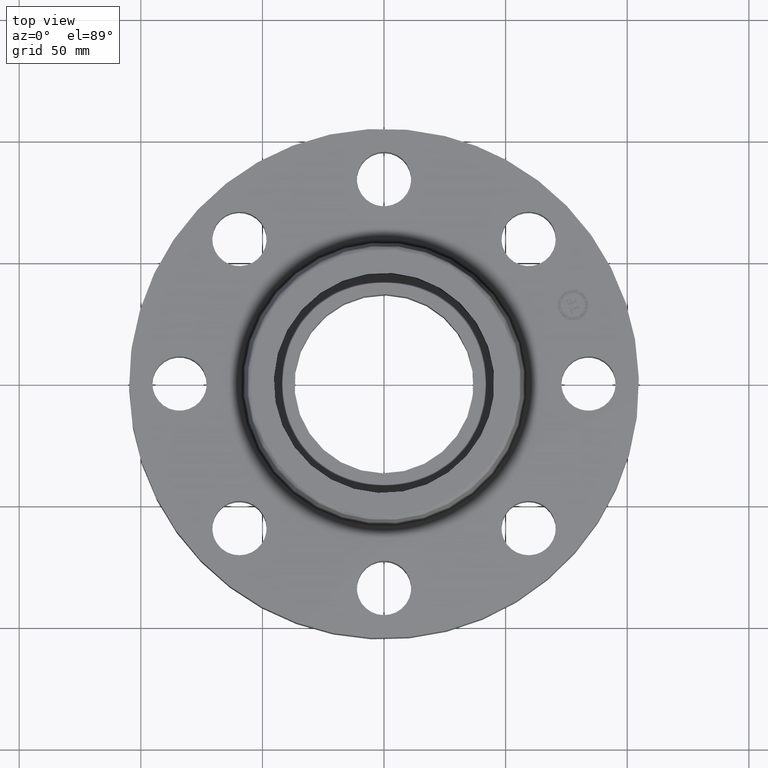
[diagram: clean part render]
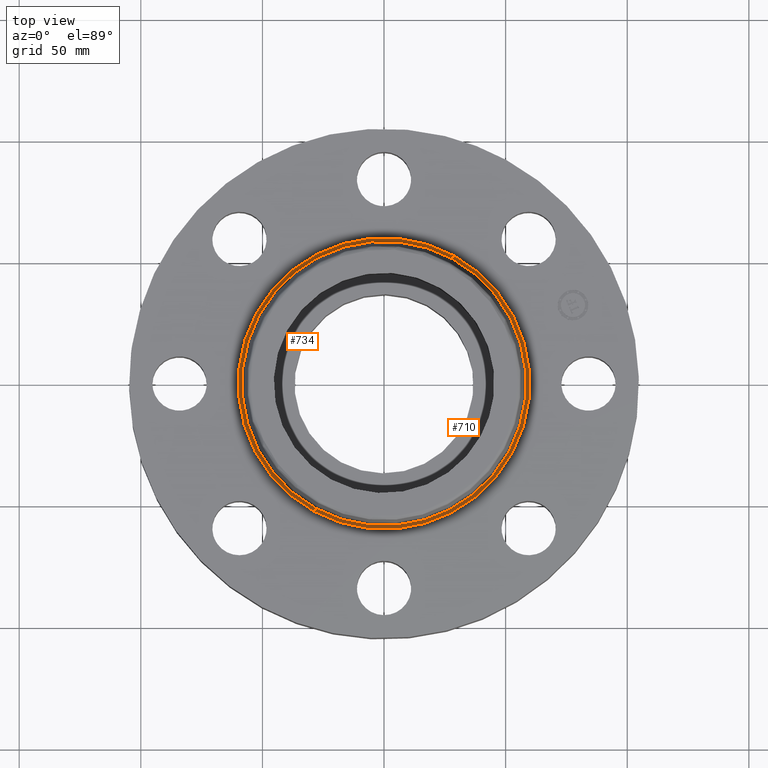
[diagram: same view with one multi-face feature highlighted, each face labeled with its STEP entity id]
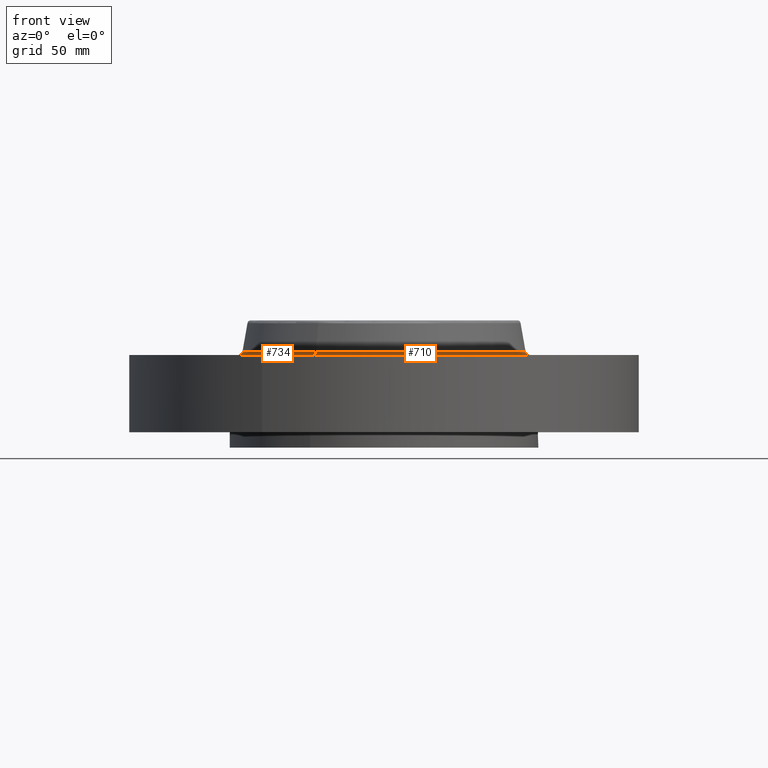
[diagram: same view with one multi-face feature highlighted, each face labeled with its STEP entity id]
A machine part, top view. The highlighted faces form ONE feature: a constant-radius fillet chain: 2 tangent blend faces with common blend radius 1.524 mm. The faces share edges in the B-rep.
A second angle (front view) of the same feature is appended — it is thin or edge-on in the first view.
Their STEP definitions:
[1] entity #734 (Torus):
#484=AXIS2_PLACEMENT_3D('Circle Axis2P3D',#482,#483,$) ;
#696=AXIS2_PLACEMENT_3D('Circle Axis2P3D',#694,#695,$) ;
#701=AXIS2_PLACEMENT_3D('Circle Axis2P3D',#699,#700,$) ;
#721=AXIS2_PLACEMENT_3D('Torus Axis2P3D',#718,#719,#720) ;
#725=AXIS2_PLACEMENT_3D('Circle Axis2P3D',#723,#724,$) ;
#448=CARTESIAN_POINT('Vertex',(1.10328162249,2.01954346356,1.29958110935)) ;
#450=CARTESIAN_POINT('Vertex',(-1.10328162249,-2.01954346356,1.29958110935)) ;
#482=CARTESIAN_POINT('Axis2P3D Location',(0.,0.,1.29958110935)) ;
#689=CARTESIAN_POINT('Vertex',(1.13161014174,2.07139847022,1.25000000001)) ;
#691=CARTESIAN_POINT('Vertex',(-1.13161014174,-2.07139847022,1.25000000001)) ;
#694=CARTESIAN_POINT('Axis2P3D Location',(1.13161014174,2.07139847022,1.31000000001)) ;
#699=CARTESIAN_POINT('Axis2P3D Location',(-1.13161014174,-2.07139847022,1.31000000001)) ;
#718=CARTESIAN_POINT('Axis2P3D Location',(0.,0.,1.31000000001)) ;
#723=CARTESIAN_POINT('Axis2P3D Location',(0.,0.,1.25000000001)) ;
#483=DIRECTION('Axis2P3D Direction',(-0.,0.,-0.0393700787402)) ;
#695=DIRECTION('Axis2P3D Direction',(-0.0345504945626,0.0188750212049,0.)) ;
#700=DIRECTION('Axis2P3D Direction',(0.0345504945626,-0.0188750212049,0.)) ;
#719=DIRECTION('Axis2P3D Direction',(0.,0.,-0.0393700787402)) ;
#720=DIRECTION('Axis2P3D XDirection',(-0.0188750212049,-0.0345504945626,0.)) ;
#724=DIRECTION('Axis2P3D Direction',(-0.,0.,-0.0393700787402)) ;
#729=ORIENTED_EDGE('',*,*,#727,.F.) ;
#730=ORIENTED_EDGE('',*,*,#703,.T.) ;
#731=ORIENTED_EDGE('',*,*,#486,.T.) ;
#732=ORIENTED_EDGE('',*,*,#698,.F.) ;
#734=ADVANCED_FACE('PartBody',(#733),#722,.F.) ;
#485=CIRCLE('generated circle',#484,2.3012575127) ;
#697=CIRCLE('generated circle',#696,0.0600000000002) ;
#702=CIRCLE('generated circle',#701,0.0600000000002) ;
#726=CIRCLE('generated circle',#725,2.36034597788) ;
#722=TOROIDAL_SURFACE('homeo Torus',#721,2.36034597788,0.0600000000002) ;
#486=EDGE_CURVE('',#451,#449,#485,.T.) ;
#698=EDGE_CURVE('',#690,#449,#697,.T.) ;
#703=EDGE_CURVE('',#692,#451,#702,.T.) ;
#727=EDGE_CURVE('',#692,#690,#726,.T.) ;
#728=EDGE_LOOP('',(#729,#730,#731,#732)) ;
#733=FACE_OUTER_BOUND('',#728,.T.) ;
#449=VERTEX_POINT('',#448) ;
#451=VERTEX_POINT('',#450) ;
#690=VERTEX_POINT('',#689) ;
#692=VERTEX_POINT('',#691) ;
[2] entity #710 (Torus):
#446=AXIS2_PLACEMENT_3D('Circle Axis2P3D',#444,#445,$) ;
#683=AXIS2_PLACEMENT_3D('Torus Axis2P3D',#680,#681,#682) ;
#687=AXIS2_PLACEMENT_3D('Circle Axis2P3D',#685,#686,$) ;
#696=AXIS2_PLACEMENT_3D('Circle Axis2P3D',#694,#695,$) ;
#701=AXIS2_PLACEMENT_3D('Circle Axis2P3D',#699,#700,$) ;
#444=CARTESIAN_POINT('Axis2P3D Location',(0.,0.,1.29958110935)) ;
#448=CARTESIAN_POINT('Vertex',(1.10328162249,2.01954346356,1.29958110935)) ;
#450=CARTESIAN_POINT('Vertex',(-1.10328162249,-2.01954346356,1.29958110935)) ;
#680=CARTESIAN_POINT('Axis2P3D Location',(0.,0.,1.31000000001)) ;
#685=CARTESIAN_POINT('Axis2P3D Location',(0.,0.,1.25000000001)) ;
#689=CARTESIAN_POINT('Vertex',(1.13161014174,2.07139847022,1.25000000001)) ;
#691=CARTESIAN_POINT('Vertex',(-1.13161014174,-2.07139847022,1.25000000001)) ;
#694=CARTESIAN_POINT('Axis2P3D Location',(1.13161014174,2.07139847022,1.31000000001)) ;
#699=CARTESIAN_POINT('Axis2P3D Location',(-1.13161014174,-2.07139847022,1.31000000001)) ;
#445=DIRECTION('Axis2P3D Direction',(-0.,0.,-0.0393700787402)) ;
#681=DIRECTION('Axis2P3D Direction',(0.,0.,-0.0393700787402)) ;
#682=DIRECTION('Axis2P3D XDirection',(0.0188750212049,0.0345504945626,0.)) ;
#686=DIRECTION('Axis2P3D Direction',(-0.,0.,-0.0393700787402)) ;
#695=DIRECTION('Axis2P3D Direction',(-0.0345504945626,0.0188750212049,0.)) ;
#700=DIRECTION('Axis2P3D Direction',(0.0345504945626,-0.0188750212049,0.)) ;
#705=ORIENTED_EDGE('',*,*,#693,.F.) ;
#706=ORIENTED_EDGE('',*,*,#698,.T.) ;
#707=ORIENTED_EDGE('',*,*,#452,.T.) ;
#708=ORIENTED_EDGE('',*,*,#703,.F.) ;
#710=ADVANCED_FACE('PartBody',(#709),#684,.F.) ;
#447=CIRCLE('generated circle',#446,2.3012575127) ;
#688=CIRCLE('generated circle',#687,2.36034597788) ;
#697=CIRCLE('generated circle',#696,0.0600000000002) ;
#702=CIRCLE('generated circle',#701,0.0600000000002) ;
#684=TOROIDAL_SURFACE('homeo Torus',#683,2.36034597788,0.0600000000002) ;
#452=EDGE_CURVE('',#449,#451,#447,.T.) ;
#693=EDGE_CURVE('',#690,#692,#688,.T.) ;
#698=EDGE_CURVE('',#690,#449,#697,.T.) ;
#703=EDGE_CURVE('',#692,#451,#702,.T.) ;
#704=EDGE_LOOP('',(#705,#706,#707,#708)) ;
#709=FACE_OUTER_BOUND('',#704,.T.) ;
#449=VERTEX_POINT('',#448) ;
#451=VERTEX_POINT('',#450) ;
#690=VERTEX_POINT('',#689) ;
#692=VERTEX_POINT('',#691) ;